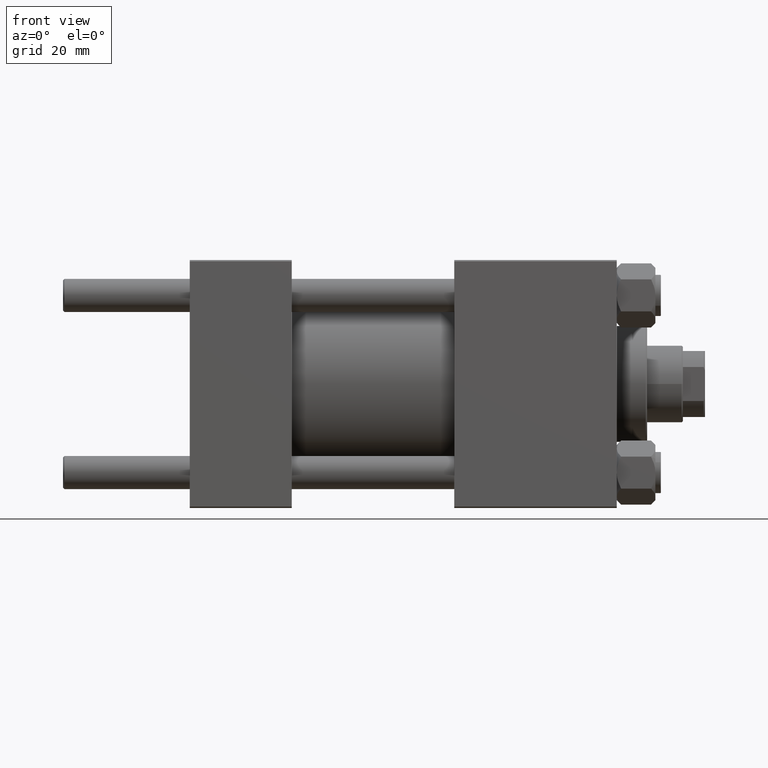
[diagram: clean part render]
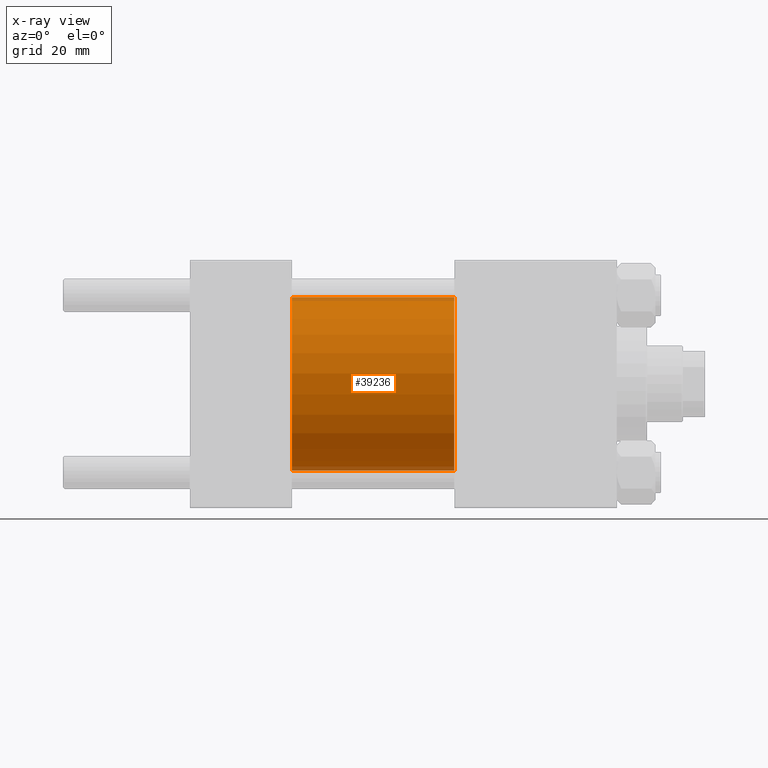
[diagram: x-ray — body ghosted, one internal face saturated and labeled with its STEP entity id]
A machine part, front view, then the same camera in x-ray: the body is ghosted and one INTERNAL B-rep face — a face not visible from any outside direction — is saturated and labeled: STEP entity #39236.
In plain terms, the highlighted cylindrical surface (partial cylindrical patch) has radius 31.5 mm, axis along (-1, -0, -0).
Its self-contained STEP definition (entity closure, byte-faithful):
#567 = VERTEX_POINT ( 'NONE', #7773 ) ;
#1995 = ORIENTED_EDGE ( 'NONE', *, *, #26360, .T. ) ;
#2327 = DIRECTION ( 'NONE',  ( -1.000000000000000000, -0.000000000000000000, -0.000000000000000000 ) ) ;
#2987 = VECTOR ( 'NONE', #40300, 1000.000000000000000 ) ;
#3194 = VERTEX_POINT ( 'NONE', #18817 ) ;
#5918 = ORIENTED_EDGE ( 'NONE', *, *, #34764, .F. ) ;
#6095 = FACE_OUTER_BOUND ( 'NONE', #44308, .T. ) ;
#6549 = CARTESIAN_POINT ( 'NONE',  ( 37.00000000000000000, 0.000000000000000000, 0.000000000000000000 ) ) ;
#6654 = VECTOR ( 'NONE', #49867, 1000.000000000000000 ) ;
#7773 = CARTESIAN_POINT ( 'NONE',  ( 37.00000000000000000, 0.000000000000000000, 31.50000000000000000 ) ) ;
#10090 = CYLINDRICAL_SURFACE ( 'NONE', #43961, 31.50000000000000000 ) ;
#13709 = CARTESIAN_POINT ( 'NONE',  ( 96.00000000000000000, 3.857637417314162689E-15, -31.50000000000000000 ) ) ;
#16483 = AXIS2_PLACEMENT_3D ( 'NONE', #6549, #29742, #25937 ) ;
#18817 = CARTESIAN_POINT ( 'NONE',  ( 96.00000000000000000, 0.000000000000000000, 31.50000000000000000 ) ) ;
#20648 = AXIS2_PLACEMENT_3D ( 'NONE', #47360, #32510, #43317 ) ;
#22146 = LINE ( 'NONE', #30724, #6654 ) ;
#24176 = LINE ( 'NONE', #31504, #2987 ) ;
#25937 = DIRECTION ( 'NONE',  ( 0.000000000000000000, 0.000000000000000000, -1.000000000000000000 ) ) ;
#26360 = EDGE_CURVE ( 'NONE', #33257, #45460, #22146, .T. ) ;
#27894 = ORIENTED_EDGE ( 'NONE', *, *, #39483, .T. ) ;
#28982 = CARTESIAN_POINT ( 'NONE',  ( 37.00000000000000000, 3.857637417314162689E-15, -31.50000000000000000 ) ) ;
#29742 = DIRECTION ( 'NONE',  ( 1.000000000000000000, 0.000000000000000000, 0.000000000000000000 ) ) ;
#30724 = CARTESIAN_POINT ( 'NONE',  ( 96.00000000000000000, 3.857637417314162689E-15, -31.50000000000000000 ) ) ;
#31504 = CARTESIAN_POINT ( 'NONE',  ( 96.00000000000000000, 0.000000000000000000, 31.50000000000000000 ) ) ;
#32510 = DIRECTION ( 'NONE',  ( 1.000000000000000000, 0.000000000000000000, 0.000000000000000000 ) ) ;
#33257 = VERTEX_POINT ( 'NONE', #13709 ) ;
#34764 = EDGE_CURVE ( 'NONE', #567, #45460, #37406, .T. ) ;
#35117 = CIRCLE ( 'NONE', #20648, 31.50000000000000000 ) ;
#37406 = CIRCLE ( 'NONE', #16483, 31.50000000000000000 ) ;
#39236 = ADVANCED_FACE ( 'NONE', ( #6095 ), #10090, .F. ) ;
#39427 = EDGE_CURVE ( 'NONE', #3194, #567, #24176, .T. ) ;
#39483 = EDGE_CURVE ( 'NONE', #3194, #33257, #35117, .T. ) ;
#40300 = DIRECTION ( 'NONE',  ( -1.000000000000000000, -0.000000000000000000, -0.000000000000000000 ) ) ;
#41346 = DIRECTION ( 'NONE',  ( 0.000000000000000000, 0.000000000000000000, 1.000000000000000000 ) ) ;
#42717 = ORIENTED_EDGE ( 'NONE', *, *, #39427, .F. ) ;
#43317 = DIRECTION ( 'NONE',  ( 0.000000000000000000, 0.000000000000000000, -1.000000000000000000 ) ) ;
#43961 = AXIS2_PLACEMENT_3D ( 'NONE', #45132, #2327, #41346 ) ;
#44308 = EDGE_LOOP ( 'NONE', ( #27894, #1995, #5918, #42717 ) ) ;
#45132 = CARTESIAN_POINT ( 'NONE',  ( 96.00000000000000000, 0.000000000000000000, 0.000000000000000000 ) ) ;
#45460 = VERTEX_POINT ( 'NONE', #28982 ) ;
#47360 = CARTESIAN_POINT ( 'NONE',  ( 96.00000000000000000, 0.000000000000000000, 0.000000000000000000 ) ) ;
#49867 = DIRECTION ( 'NONE',  ( -1.000000000000000000, -0.000000000000000000, -0.000000000000000000 ) ) ;